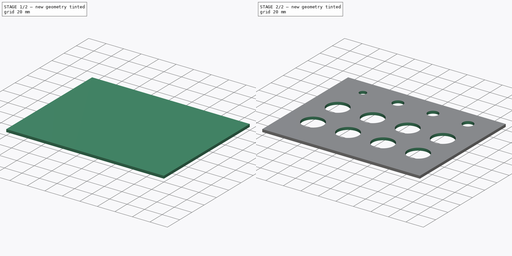
[diagram: build sequence overview — one tinted view per stage of 2, left to right]
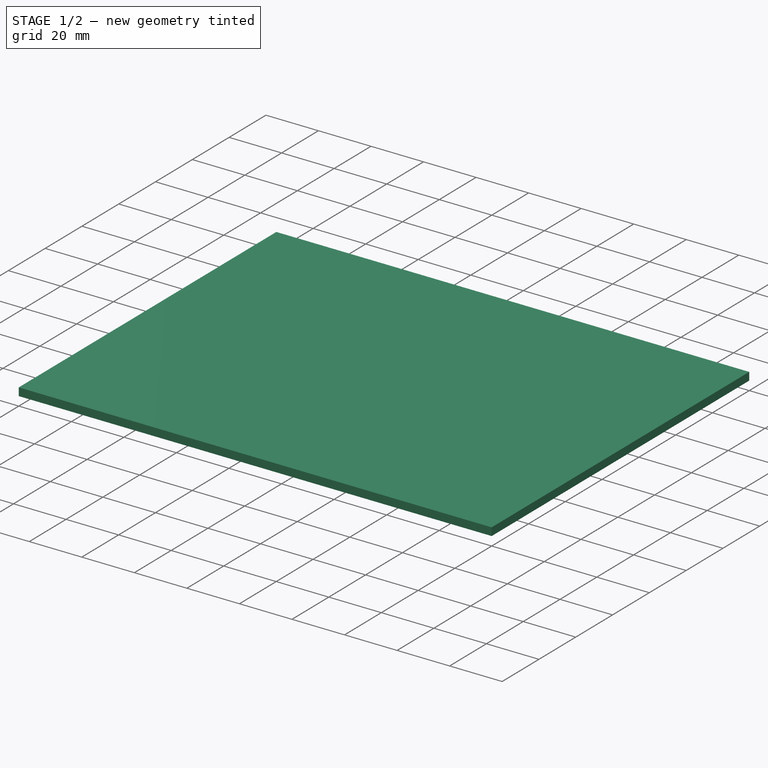
[diagram: stage 1 of 2 — iso view after this stage's code; geometry added in this stage tinted green]
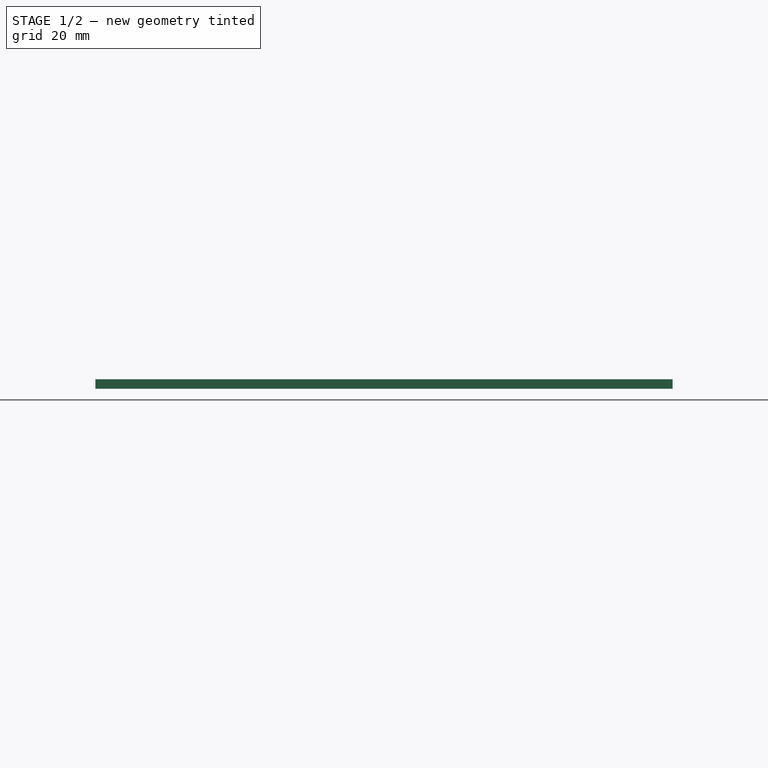
[diagram: stage 1 of 2 — front view after this stage's code; geometry added in this stage tinted green]
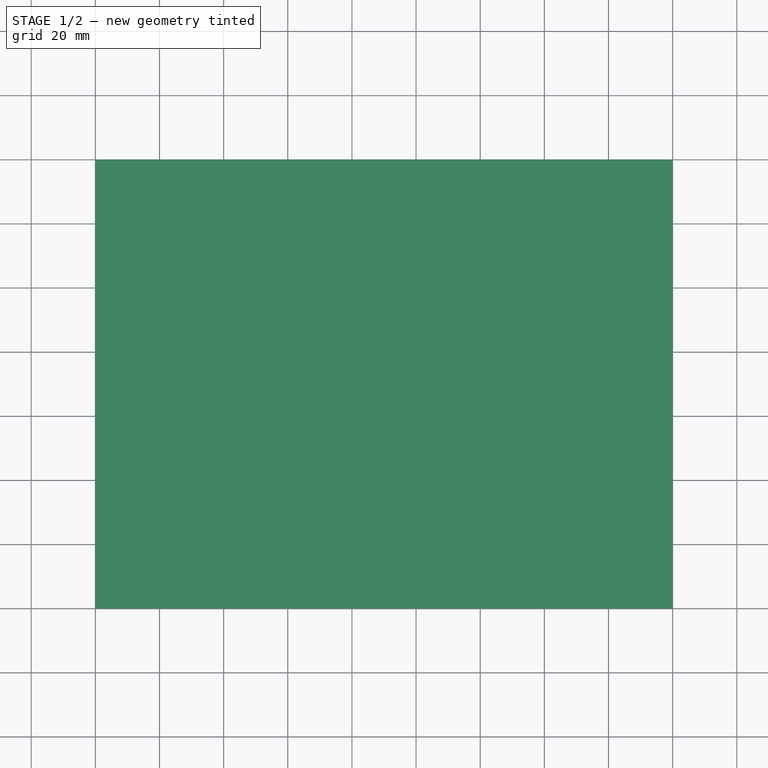
[diagram: stage 1 of 2 — top view after this stage's code; geometry added in this stage tinted green]
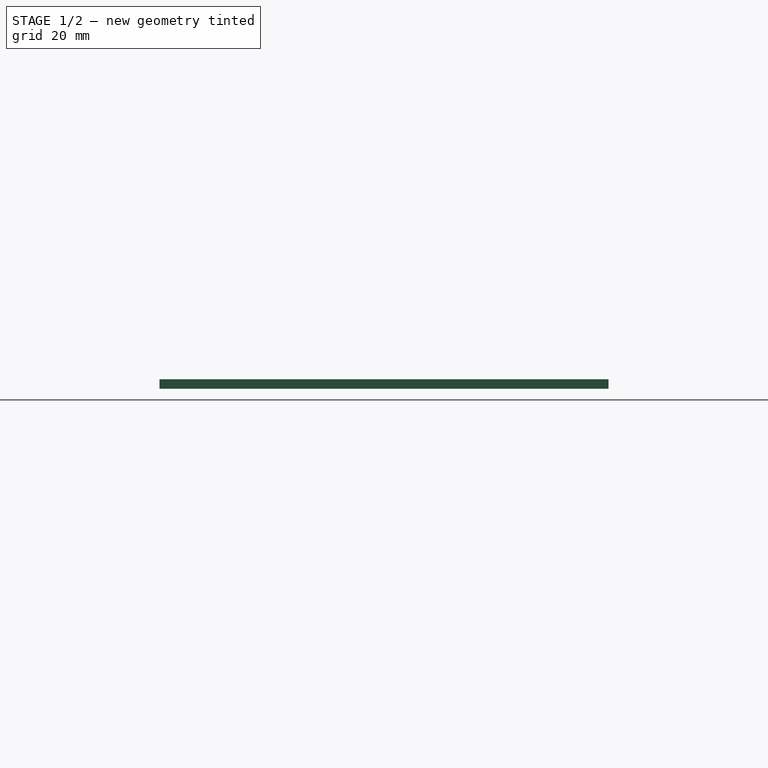
[diagram: stage 1 of 2 — right view after this stage's code; geometry added in this stage tinted green]
FCSTD DOCUMENT  (FreeCAD 0.20R26620 (Git))
Label: Panel_Arriba
License: All rights reserved
LicenseURL: http://en.wikipedia.org/wiki/All_rights_reserved
objects: Sketcher::SketchObject×2, PartDesign::Pad×1, PartDesign::Pocket×1, PartDesign::Body×1
note: 7 computed .brp shape members not serialized (recipe doc carries the construction recipe); baked Part::Feature solids carry a one-line shape summary decoded from their .brp

FEATURE [Sketcher::SketchObject] Sketch
  FullyConstrained = true
  MapMode = 5
  Support = -> [XY_Plane]
  sketch-geometry (4):
    g0: LineSegment StartX=0 StartY=0 StartZ=0 EndX=180 EndY=0 EndZ=0
    g1: LineSegment StartX=180 StartY=0 StartZ=0 EndX=180 EndY=140 EndZ=0
    g2: LineSegment StartX=180 StartY=140 StartZ=0 EndX=0 EndY=140 EndZ=0
    g3: LineSegment StartX=0 StartY=140 StartZ=0 EndX=0 EndY=0 EndZ=0
  constraints (11):
    c: Coincident(g0,g1)
    c: Coincident(g1,g2)
    c: Coincident(g2,g3)
    c: Coincident(g3,g0)
    c: Horizontal(g0)
    c: Horizontal(g2)
    c: Vertical(g1)
    c: Vertical(g3)
    c: Coincident(g0,g-1)
    c: Distance(g2) = 180
    c: Distance(g1) = 140
FEATURE [PartDesign::Pad] Pad
  Direction = (0,0,1)
  Length = 3
  Length2 = 100
  Profile = -> Sketch
  ReferenceAxis = -> Sketch [N_Axis]
  Type = 0
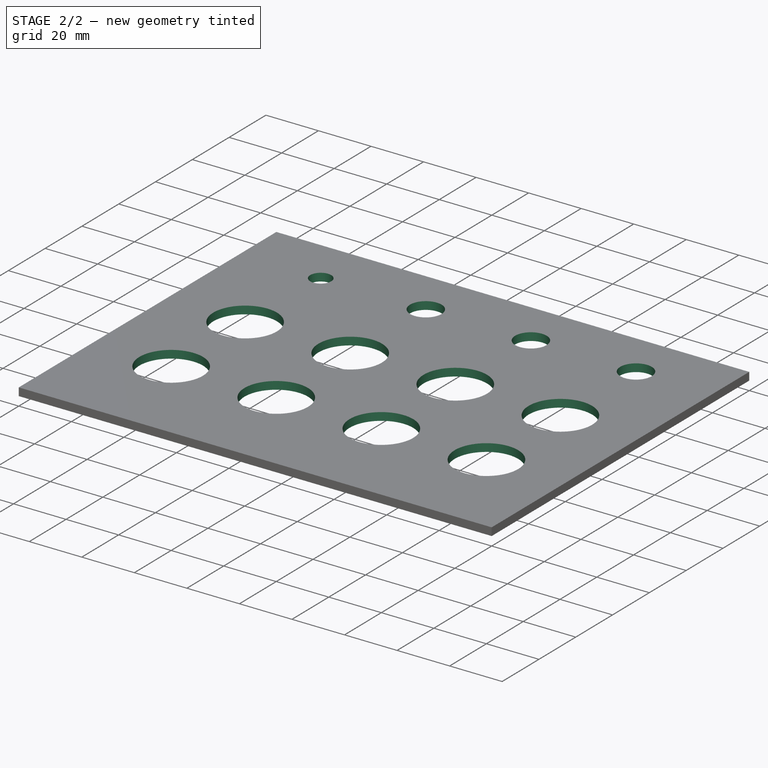
[diagram: stage 2 of 2 — iso view after this stage's code; geometry added in this stage tinted green]
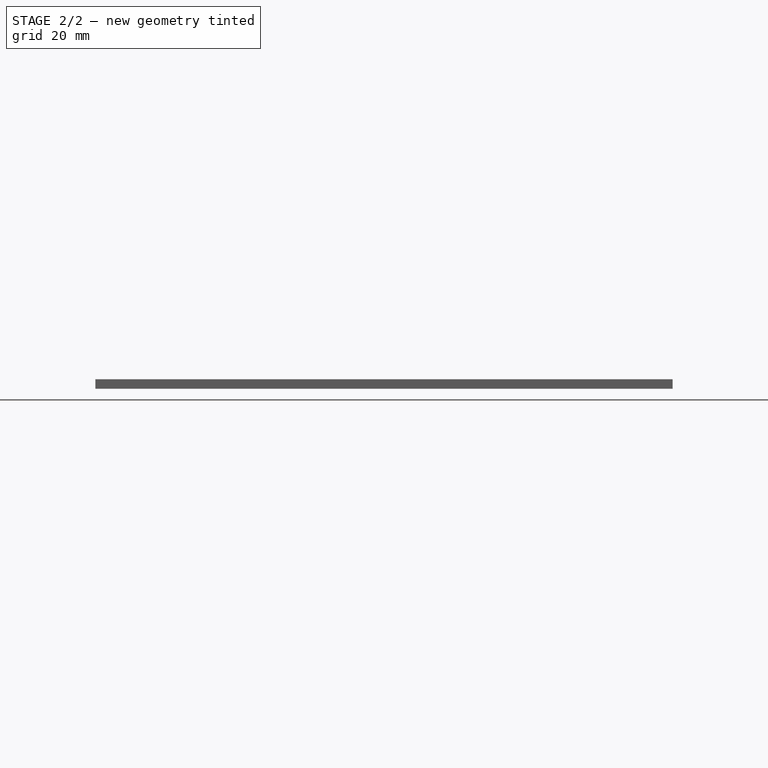
[diagram: stage 2 of 2 — front view after this stage's code; geometry added in this stage tinted green]
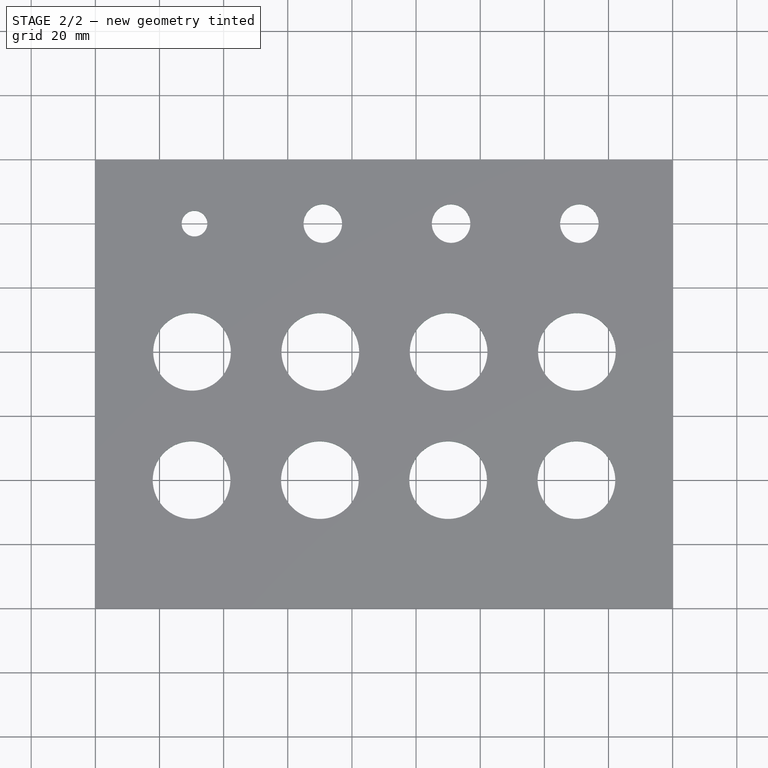
[diagram: stage 2 of 2 — top view after this stage's code; geometry added in this stage tinted green]
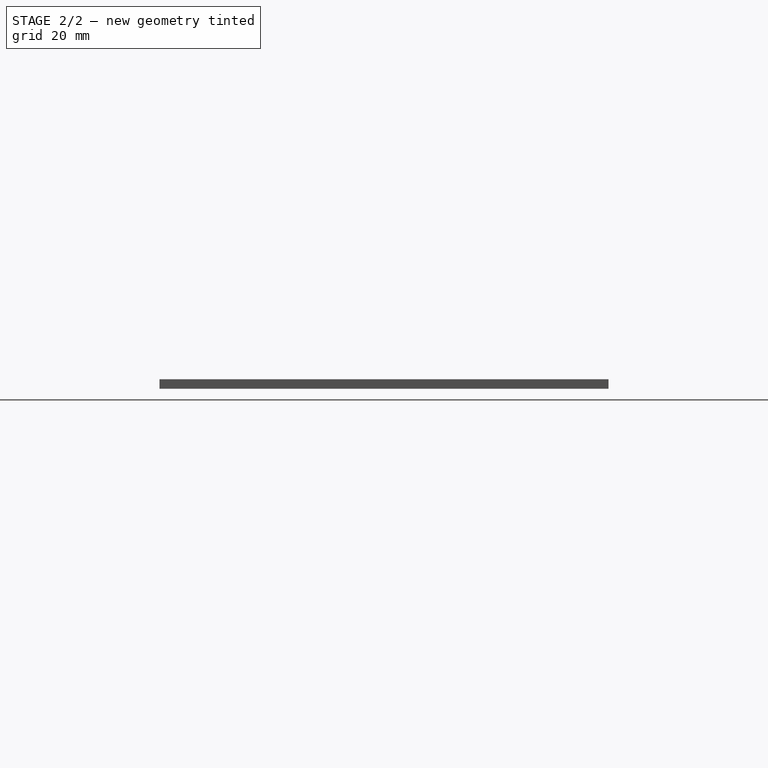
[diagram: stage 2 of 2 — right view after this stage's code; geometry added in this stage tinted green]
FEATURE [Sketcher::SketchObject] Sketch001
  FullyConstrained = false
  MapMode = 5
  Placement = pos=(0,0,3) rot=(0,0,1;0rad)
  Support = -> [Pad]
  sketch-geometry (15):
    g0: LineSegment StartX=30 StartY=40 StartZ=0 EndX=150 EndY=40 EndZ=0
    g1: Circle CenterX=30 CenterY=40 CenterZ=0 NormalX=0 NormalY=0 NormalZ=1 AngleXU=0 Radius=12.1
    g2: Circle CenterX=150 CenterY=40 CenterZ=0 NormalX=0 NormalY=0 NormalZ=1 AngleXU=0 Radius=12.1
    g3: Circle CenterX=70 CenterY=40 CenterZ=0 NormalX=0 NormalY=0 NormalZ=1 AngleXU=0 Radius=12.1
    g4: Circle CenterX=110 CenterY=40 CenterZ=0 NormalX=0 NormalY=0 NormalZ=1 AngleXU=0 Radius=12.1
    g5: LineSegment StartX=30.1436 StartY=79.9997 StartZ=0 EndX=150.144 EndY=79.9997 EndZ=0
    g6: LineSegment StartX=30.9143 StartY=119.992 StartZ=0 EndX=150.914 EndY=119.992 EndZ=0
    g7: Circle CenterX=30.1436 CenterY=79.9997 CenterZ=0 NormalX=0 NormalY=0 NormalZ=1 AngleXU=0 Radius=12.1
    g8: Circle CenterX=70.1436 CenterY=79.9997 CenterZ=0 NormalX=0 NormalY=0 NormalZ=1 AngleXU=0 Radius=12.1
    g9: Circle CenterX=110.144 CenterY=79.9997 CenterZ=0 NormalX=0 NormalY=0 NormalZ=1 AngleXU=0 Radius=12.1
    g10: Circle CenterX=150.144 CenterY=79.9997 CenterZ=0 NormalX=0 NormalY=0 NormalZ=1 AngleXU=0 Radius=12.1
    g11: Circle CenterX=30.9143 CenterY=119.992 CenterZ=0 NormalX=0 NormalY=0 NormalZ=1 AngleXU=0 Radius=4
    g12: Circle CenterX=70.9143 CenterY=119.992 CenterZ=0 NormalX=0 NormalY=0 NormalZ=1 AngleXU=0 Radius=6
    g13: Circle CenterX=110.914 CenterY=119.992 CenterZ=0 NormalX=0 NormalY=0 NormalZ=1 AngleXU=0 Radius=6
    g14: Circle CenterX=150.914 CenterY=119.992 CenterZ=0 NormalX=0 NormalY=0 NormalZ=1 AngleXU=0 Radius=6
  constraints (40):
    c: Horizontal(g0)
    c: Coincident(g1,g0)
    c: Coincident(g2,g0)
    c: PointOnObject(g3,g0)
    c: PointOnObject(g4,g0)
    c: Diameter(g1) = 24.2
    c: Diameter(g3) = 24.2
    c: Diameter(g4) = 24.2
    c: Diameter(g2) = 24.2
    c: DistanceX(g-2,g1) = 30
    c: Distance(g1,g3) = 40
    c: Distance(g3,g4) = 40
    c: Distance(g4,g2) = 40
    c: Horizontal(g5)
    c: Horizontal(g6)
    c: Diameter(g7) = 24.2
    c: Diameter(g8) = 24.2
    c: Diameter(g9) = 24.2
    c: Diameter(g10) = 24.2
    c: Distance(g7,g8) = 40
    c: Distance(g8,g9) = 40
    c: Distance(g9,g10) = 40
    c: PointOnObject(g8,g5)
    c: PointOnObject(g9,g5)
    c: Coincident(g5,g7)
    c: Coincident(g10,g5)
    c: Distance(g7,g1) = 40
    c: DistanceY(g-1,g1) = 40
    c: Diameter(g11) = 8
    c: Diameter(g12) = 12
    c: Diameter(g13) = 12
    c: Diameter(g14) = 12
    c: Distance(g11,g12) = 40
    c: Distance(g12,g13) = 40
    c: Distance(g13,g14) = 40
    c: Coincident(g11,g6)
    c: Coincident(g14,g6)
    c: PointOnObject(g12,g6)
    c: PointOnObject(g13,g6)
    c: Distance(g11,g7) = 40
FEATURE [PartDesign::Pocket] Pocket
  BaseFeature = -> Pad
  Direction = (0,0,-1)
  Length = 5
  Length2 = 100
  Profile = -> Sketch001
  ReferenceAxis = -> Sketch001 [N_Axis]
  Type = 2
FEATURE [PartDesign::Body] Body
  Group = -> [Sketch,Pad,Sketch001,Pocket]
  Origin = -> Origin
  Tip = -> Pocket
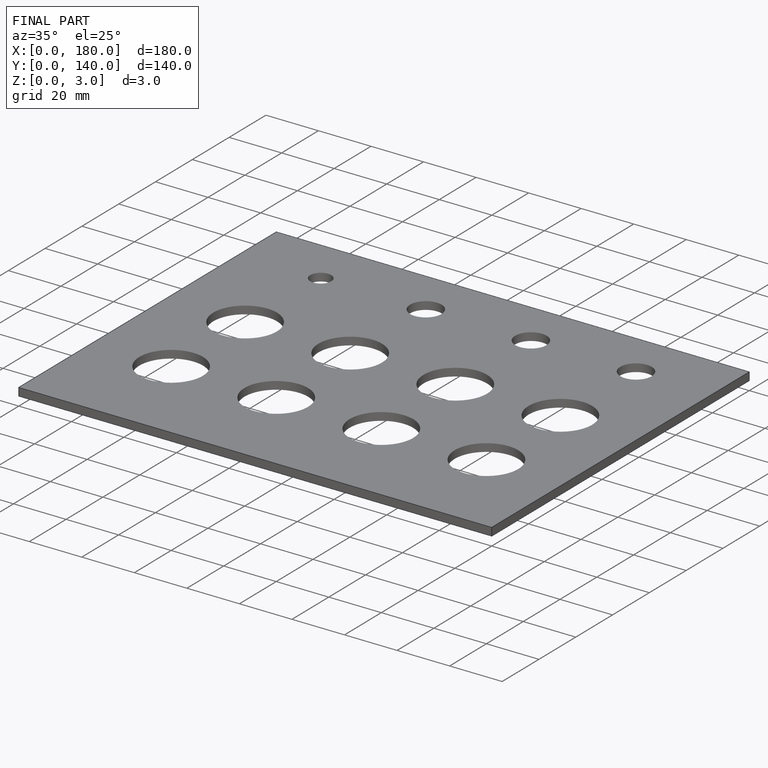
[diagram: finished part — iso view with bounding-box wireframe]
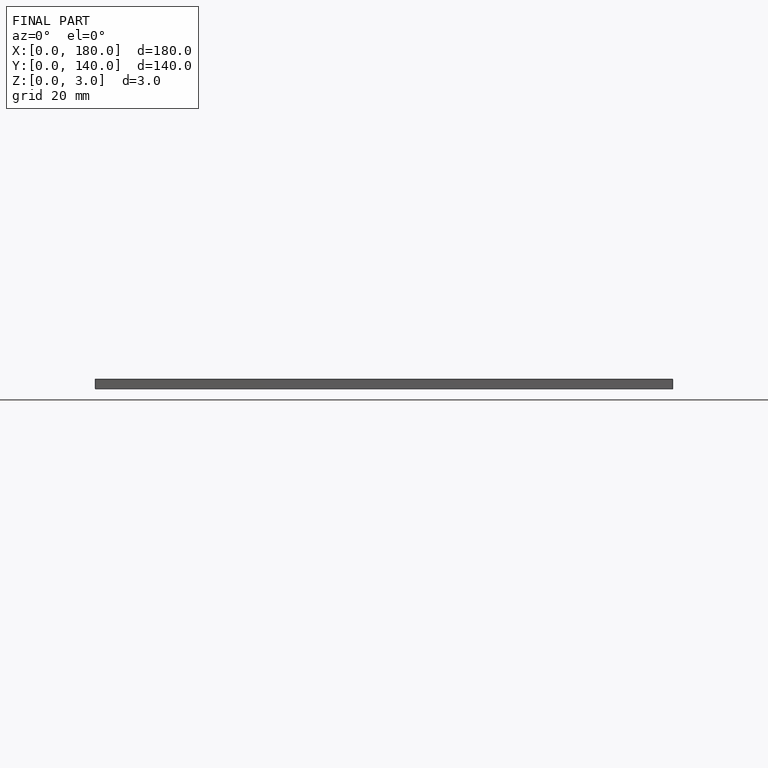
[diagram: finished part — front view with bounding-box wireframe]
